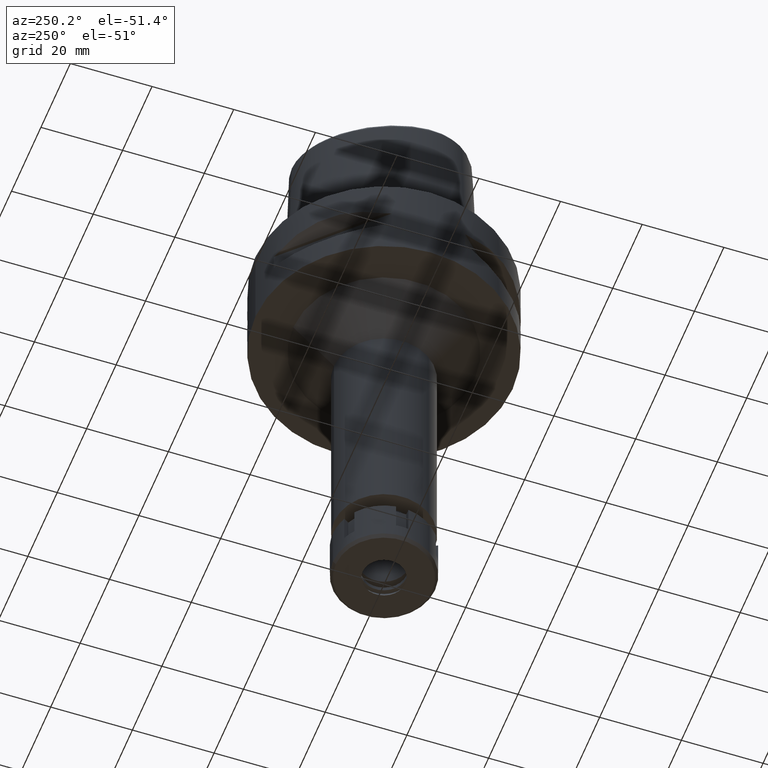
[diagram: clean part render]
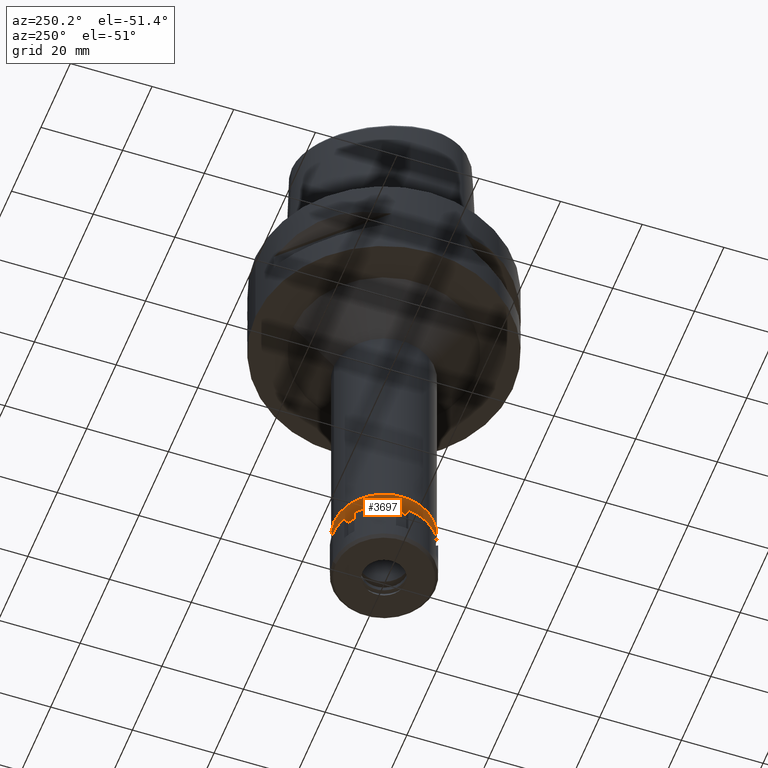
[diagram: same view with one face highlighted and labeled with its STEP entity id]
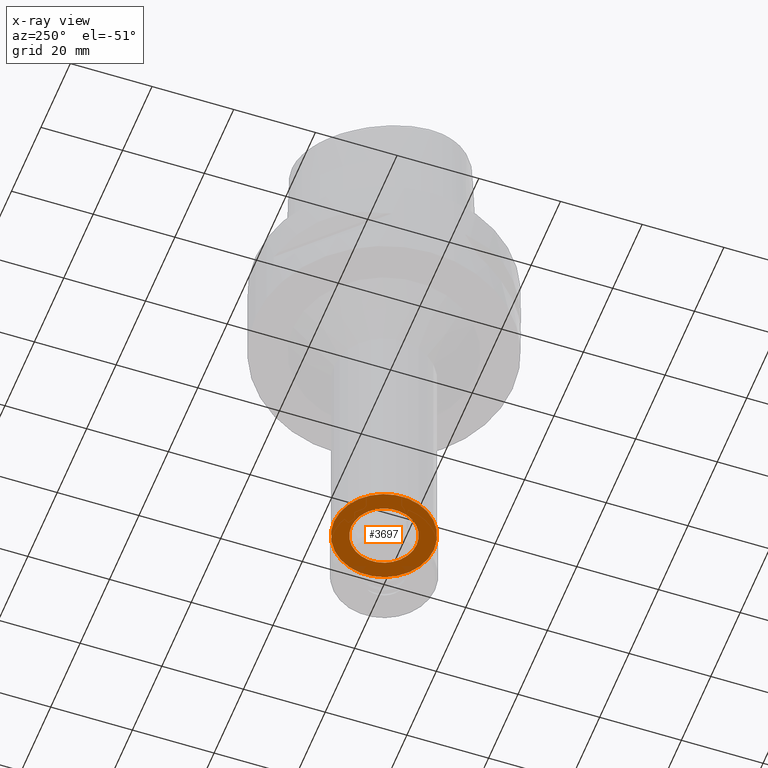
[diagram: x-ray of the same camera — body ghosted, the highlighted face saturated]
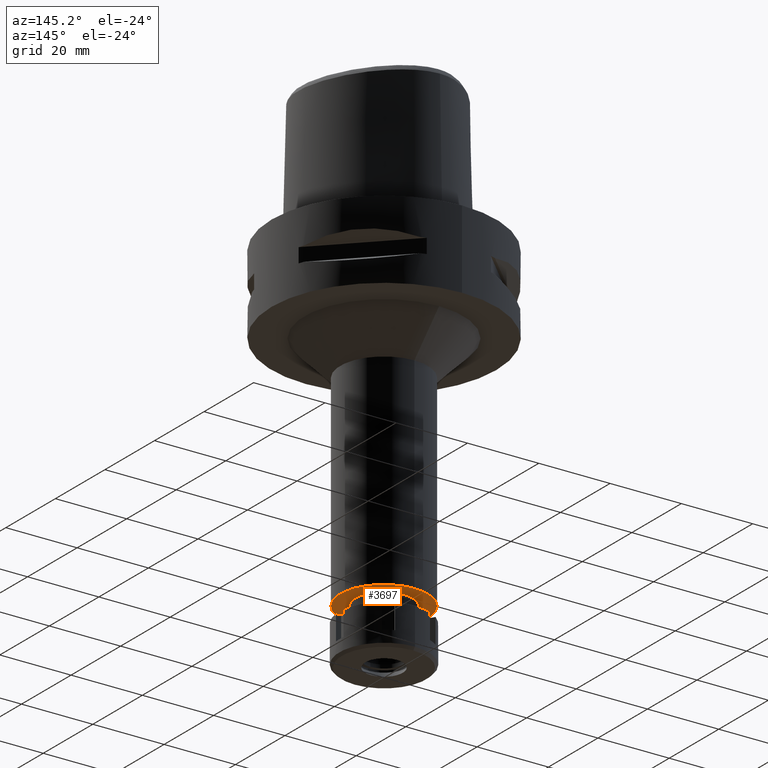
[diagram: same view with one face highlighted and labeled with its STEP entity id]
A machine part, auxiliary view. The second image highlights one B-rep face of the part: STEP entity #3697.
The next image is the same camera in x-ray: the body ghosted, the highlighted face saturated — about 3% of this face is hidden behind the body in this view.
A second angle (auxiliary view) of the same face is appended — the face is thin or edge-on in the first view.
In plain terms, the highlighted planar face has unit normal (0, 0, -1).
Its self-contained STEP definition (entity closure, byte-faithful):
#60 = DIRECTION ( 'NONE',  ( 0.0000000000000000000, 0.0000000000000000000, 1.000000000000000000 ) ) ;
#74 = VERTEX_POINT ( 'NONE', #2637 ) ;
#464 = DIRECTION ( 'NONE',  ( 0.0000000000000000000, 1.000000000000000000, 0.0000000000000000000 ) ) ;
#520 = DIRECTION ( 'NONE',  ( 0.0000000000000000000, -1.000000000000000000, 0.0000000000000000000 ) ) ;
#665 = AXIS2_PLACEMENT_3D ( 'NONE', #4394, #1416, #520 ) ;
#859 = AXIS2_PLACEMENT_3D ( 'NONE', #3420, #1686, #464 ) ;
#987 = FACE_OUTER_BOUND ( 'NONE', #4974, .T. ) ;
#1376 = CIRCLE ( 'NONE', #4965, 12.25000000000000000 ) ;
#1377 = EDGE_CURVE ( 'NONE', #4551, #2373, #1376, .T. ) ;
#1416 = DIRECTION ( 'NONE',  ( 0.0000000000000000000, 0.0000000000000000000, 1.000000000000000000 ) ) ;
#1686 = DIRECTION ( 'NONE',  ( 0.0000000000000000000, 0.0000000000000000000, -1.000000000000000000 ) ) ;
#1749 = CARTESIAN_POINT ( 'NONE',  ( 0.0000000000000000000, 1.285266815705000040E-14, -89.50000000000000000 ) ) ;
#1945 = CARTESIAN_POINT ( 'NONE',  ( 0.0000000000000000000, 1.285266815705000040E-14, -89.50000000000000000 ) ) ;
#2027 = AXIS2_PLACEMENT_3D ( 'NONE', #1945, #5406, #3278 ) ;
#2211 = CIRCLE ( 'NONE', #859, 8.000000000000000000 ) ;
#2281 = CARTESIAN_POINT ( 'NONE',  ( 0.0000000000000000000, 0.0000000000000000000, -89.50000000000000000 ) ) ;
#2308 = EDGE_LOOP ( 'NONE', ( #2755, #5302 ) ) ;
#2373 = VERTEX_POINT ( 'NONE', #4962 ) ;
#2637 = CARTESIAN_POINT ( 'NONE',  ( 0.0000000000000000000, -8.000000000000000000, -89.50000000000000000 ) ) ;
#2682 = PLANE ( 'NONE',  #5068 ) ;
#2702 = DIRECTION ( 'NONE',  ( 0.0000000000000000000, 0.0000000000000000000, -1.000000000000000000 ) ) ;
#2755 = ORIENTED_EDGE ( 'NONE', *, *, #4831, .F. ) ;
#3005 = CIRCLE ( 'NONE', #665, 12.25000000000000000 ) ;
#3147 = VERTEX_POINT ( 'NONE', #3806 ) ;
#3278 = DIRECTION ( 'NONE',  ( 0.0000000000000000000, -1.000000000000000000, 0.0000000000000000000 ) ) ;
#3409 = ORIENTED_EDGE ( 'NONE', *, *, #3702, .F. ) ;
#3420 = CARTESIAN_POINT ( 'NONE',  ( 0.0000000000000000000, 1.285266815705000040E-14, -89.50000000000000000 ) ) ;
#3490 = DIRECTION ( 'NONE',  ( 0.0000000000000000000, 1.000000000000000000, 0.0000000000000000000 ) ) ;
#3505 = ORIENTED_EDGE ( 'NONE', *, *, #1377, .F. ) ;
#3569 = DIRECTION ( 'NONE',  ( 0.0000000000000000000, -1.000000000000000000, 0.0000000000000000000 ) ) ;
#3697 = ADVANCED_FACE ( 'NONE', ( #987, #5265 ), #2682, .T. ) ;
#3702 = EDGE_CURVE ( 'NONE', #2373, #4551, #3005, .T. ) ;
#3806 = CARTESIAN_POINT ( 'NONE',  ( 0.0000000000000000000, 8.000000000000000000, -89.50000000000000000 ) ) ;
#4123 = CARTESIAN_POINT ( 'NONE',  ( 0.0000000000000000000, 12.25000000000000000, -89.50000000000000000 ) ) ;
#4394 = CARTESIAN_POINT ( 'NONE',  ( 0.0000000000000000000, 1.285266815705000040E-14, -89.50000000000000000 ) ) ;
#4440 = CIRCLE ( 'NONE', #2027, 8.000000000000000000 ) ;
#4551 = VERTEX_POINT ( 'NONE', #4123 ) ;
#4831 = EDGE_CURVE ( 'NONE', #3147, #74, #2211, .T. ) ;
#4962 = CARTESIAN_POINT ( 'NONE',  ( 0.0000000000000000000, -12.25000000000000000, -89.50000000000000000 ) ) ;
#4965 = AXIS2_PLACEMENT_3D ( 'NONE', #1749, #60, #3490 ) ;
#4974 = EDGE_LOOP ( 'NONE', ( #3505, #3409 ) ) ;
#4979 = EDGE_CURVE ( 'NONE', #74, #3147, #4440, .T. ) ;
#5068 = AXIS2_PLACEMENT_3D ( 'NONE', #2281, #2702, #3569 ) ;
#5265 = FACE_BOUND ( 'NONE', #2308, .T. ) ;
#5302 = ORIENTED_EDGE ( 'NONE', *, *, #4979, .F. ) ;
#5406 = DIRECTION ( 'NONE',  ( 0.0000000000000000000, 0.0000000000000000000, -1.000000000000000000 ) ) ;